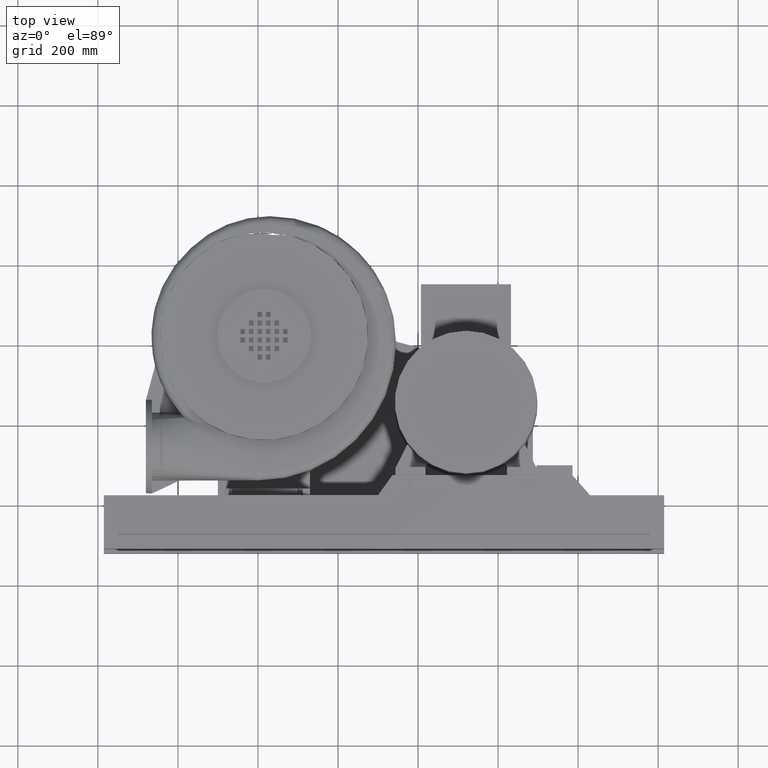
[diagram: clean part render]
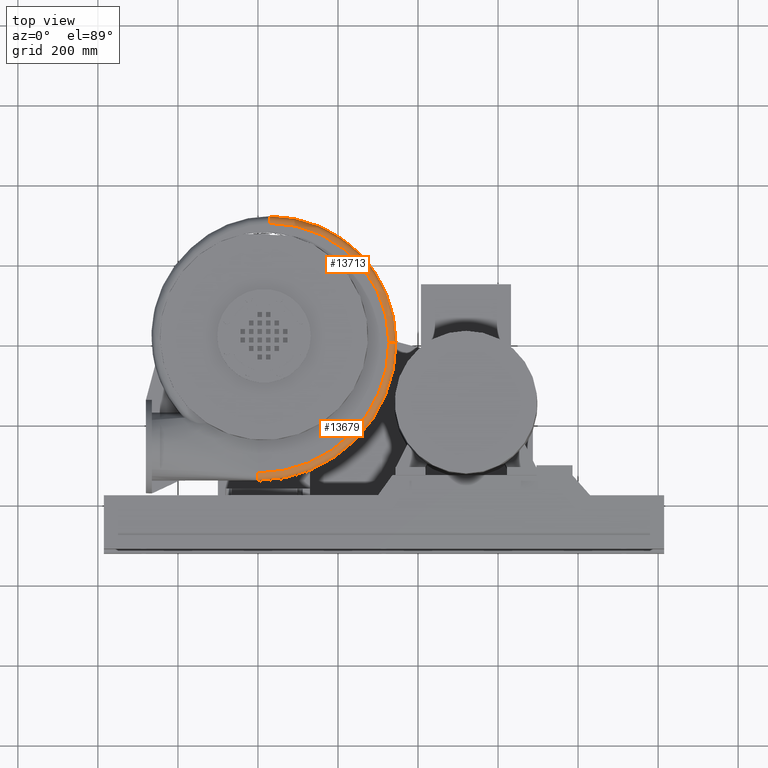
[diagram: same view with one multi-face feature highlighted, each face labeled with its STEP entity id]
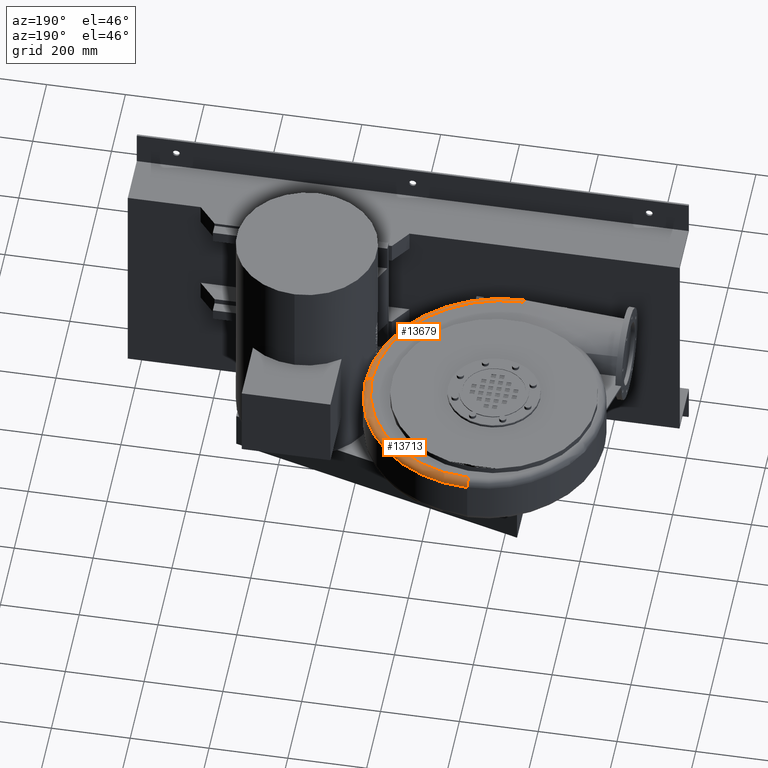
[diagram: same view with one multi-face feature highlighted, each face labeled with its STEP entity id]
A machine part, top view. The highlighted faces form ONE feature: a constant-radius fillet chain: 2 tangent blend faces with common blend radius 18 mm. The faces share edges in the B-rep.
A second angle (auxiliary view) of the same feature is appended — it is thin or edge-on in the first view.
Their STEP definitions:
[1] entity #13679 (Torus):
#13636=CARTESIAN_POINT('',(5.329071E-014,-1.326050E-013,49.499999999999964));
#13637=DIRECTION('',(6.833984E-031,-2.368476E-016,-1.0));
#13638=DIRECTION('',(-1.0,0.0,0.0));
#13639=AXIS2_PLACEMENT_3D('',#13636,#13637,#13638);
#13640=TOROIDAL_SURFACE('',#13639,327.0,18.0);
#13641=CARTESIAN_POINT('',(9.372842E-014,-327.00000000000017,67.500000000000043));
#13642=VERTEX_POINT('',#13641);
#13643=CARTESIAN_POINT('',(9.553962E-014,-345.00000000000011,49.500000000000043));
#13644=VERTEX_POINT('',#13643);
#13645=CARTESIAN_POINT('',(8.619420E-014,-327.00000000000017,49.500000000000043));
#13646=DIRECTION('',(1.0,0.0,0.0));
#13647=DIRECTION('',(0.0,-1.0,0.0));
#13648=AXIS2_PLACEMENT_3D('',#13645,#13646,#13647);
#13649=CIRCLE('',#13648,18.0);
#13650=EDGE_CURVE('',#13642,#13644,#13649,.T.);
#13651=ORIENTED_EDGE('',*,*,#13650,.T.);
#13652=CARTESIAN_POINT('',(345.00000000000006,-1.326050E-013,49.499999999999964));
#13653=VERTEX_POINT('',#13652);
#13654=CARTESIAN_POINT('',(5.329071E-014,-1.326050E-013,49.499999999999964));
#13655=DIRECTION('',(-1.184238E-016,1.184238E-016,1.0));
#13656=DIRECTION('',(0.707106781186548,-0.707106781186547,1.674765E-016));
#13657=AXIS2_PLACEMENT_3D('',#13654,#13655,#13656);
#13658=CIRCLE('',#13657,345.0);
#13659=EDGE_CURVE('',#13644,#13653,#13658,.T.);
#13660=ORIENTED_EDGE('',*,*,#13659,.T.);
#13661=CARTESIAN_POINT('',(327.00000000000011,-1.283418E-013,67.499999999999972));
#13662=VERTEX_POINT('',#13661);
#13663=CARTESIAN_POINT('',(327.00000000000011,-1.326050E-013,49.499999999999964));
#13664=DIRECTION('',(0.0,1.0,0.0));
#13665=DIRECTION('',(0.0,0.0,1.0));
#13666=AXIS2_PLACEMENT_3D('',#13663,#13664,#13665);
#13667=CIRCLE('',#13666,18.0);
#13668=EDGE_CURVE('',#13662,#13653,#13667,.T.);
#13669=ORIENTED_EDGE('',*,*,#13668,.F.);
#13670=CARTESIAN_POINT('',(5.329071E-014,-1.283418E-013,67.499999999999972));
#13671=DIRECTION('',(1.184238E-016,-1.184238E-016,-1.0));
#13672=DIRECTION('',(0.707106781186548,-0.707106781186547,1.674765E-016));
#13673=AXIS2_PLACEMENT_3D('',#13670,#13671,#13672);
#13674=CIRCLE('',#13673,327.0);
#13675=EDGE_CURVE('',#13662,#13642,#13674,.T.);
#13676=ORIENTED_EDGE('',*,*,#13675,.T.);
#13677=EDGE_LOOP('',(#13651,#13660,#13669,#13676));
#13678=FACE_OUTER_BOUND('',#13677,.T.);
#13679=ADVANCED_FACE('',(#13678),#13640,.T.);
[2] entity #13713 (Torus):
#13652=CARTESIAN_POINT('',(345.00000000000006,-1.326050E-013,49.499999999999964));
#13653=VERTEX_POINT('',#13652);
#13661=CARTESIAN_POINT('',(327.00000000000011,-1.283418E-013,67.499999999999972));
#13662=VERTEX_POINT('',#13661);
#13663=CARTESIAN_POINT('',(327.00000000000011,-1.326050E-013,49.499999999999964));
#13664=DIRECTION('',(0.0,1.0,0.0));
#13665=DIRECTION('',(0.0,0.0,1.0));
#13666=AXIS2_PLACEMENT_3D('',#13663,#13664,#13665);
#13667=CIRCLE('',#13666,18.0);
#13668=EDGE_CURVE('',#13662,#13653,#13667,.T.);
#13680=CARTESIAN_POINT('',(30.000000000000053,-1.326050E-013,49.499999999999964));
#13681=DIRECTION('',(6.833984E-031,-2.368476E-016,-1.0));
#13682=DIRECTION('',(-1.0,0.0,0.0));
#13683=AXIS2_PLACEMENT_3D('',#13680,#13681,#13682);
#13684=TOROIDAL_SURFACE('',#13683,297.0,18.0);
#13685=ORIENTED_EDGE('',*,*,#13668,.T.);
#13686=CARTESIAN_POINT('',(30.000000000000053,314.99999999999989,49.499999999999893));
#13687=VERTEX_POINT('',#13686);
#13688=CARTESIAN_POINT('',(30.000000000000053,-1.326050E-013,49.499999999999964));
#13689=DIRECTION('',(1.184238E-016,1.184238E-016,1.0));
#13690=DIRECTION('',(0.707106781186548,0.707106781186547,-1.674765E-016));
#13691=AXIS2_PLACEMENT_3D('',#13688,#13689,#13690);
#13692=CIRCLE('',#13691,315.0);
#13693=EDGE_CURVE('',#13653,#13687,#13692,.T.);
#13694=ORIENTED_EDGE('',*,*,#13693,.T.);
#13695=CARTESIAN_POINT('',(30.000000000000036,296.99999999999983,67.499999999999886));
#13696=VERTEX_POINT('',#13695);
#13697=CARTESIAN_POINT('',(30.000000000000036,296.99999999999983,49.499999999999893));
#13698=DIRECTION('',(-1.0,0.0,0.0));
#13699=DIRECTION('',(0.0,0.0,1.0));
#13700=AXIS2_PLACEMENT_3D('',#13697,#13698,#13699);
#13701=CIRCLE('',#13700,18.0);
#13702=EDGE_CURVE('',#13696,#13687,#13701,.T.);
#13703=ORIENTED_EDGE('',*,*,#13702,.F.);
#13704=CARTESIAN_POINT('',(30.000000000000053,-1.283418E-013,67.499999999999972));
#13705=DIRECTION('',(-1.184238E-016,-1.184238E-016,-1.0));
#13706=DIRECTION('',(0.707106781186548,0.707106781186547,-1.674765E-016));
#13707=AXIS2_PLACEMENT_3D('',#13704,#13705,#13706);
#13708=CIRCLE('',#13707,297.0);
#13709=EDGE_CURVE('',#13696,#13662,#13708,.T.);
#13710=ORIENTED_EDGE('',*,*,#13709,.T.);
#13711=EDGE_LOOP('',(#13685,#13694,#13703,#13710));
#13712=FACE_OUTER_BOUND('',#13711,.T.);
#13713=ADVANCED_FACE('',(#13712),#13684,.T.);